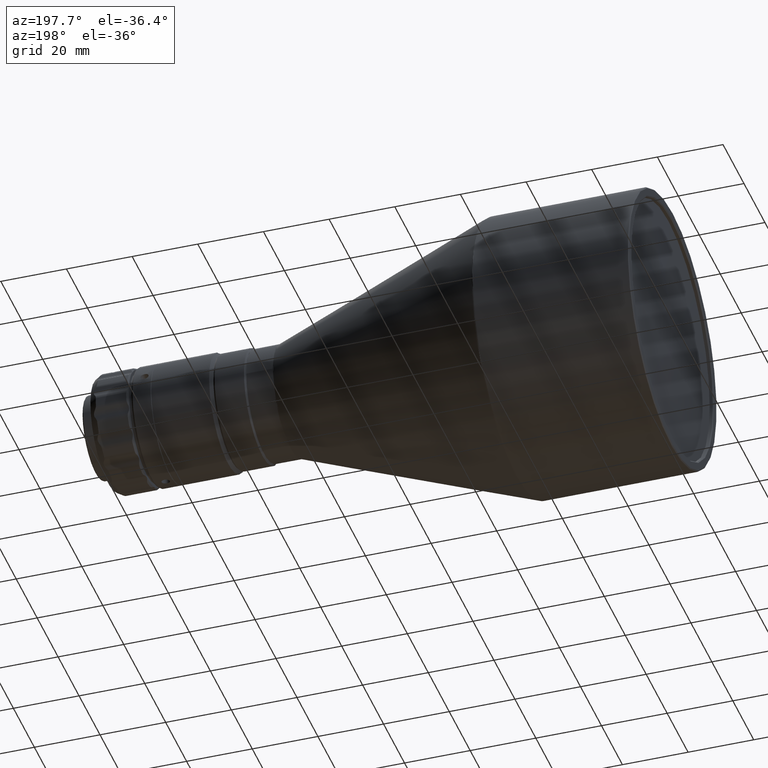
[diagram: clean part render]
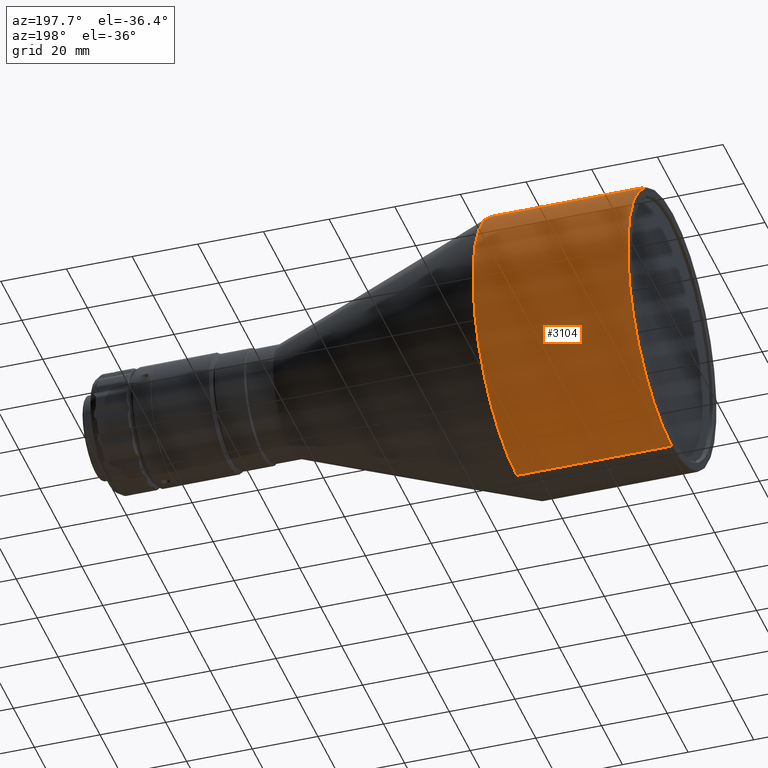
[diagram: same view with one face highlighted and labeled with its STEP entity id]
A machine part, auxiliary view. The second image highlights one B-rep face of the part: STEP entity #3104.
In plain terms, the highlighted cylindrical surface (partial cylindrical patch) has radius 42 mm, axis along (-1, 0, 0).
Its self-contained STEP definition (entity closure, byte-faithful):
#177 = CARTESIAN_POINT ( 'NONE',  ( 47.46041055200000600, 5.143516556418883300E-015, -42.00000000000000000 ) ) ;
#202 = CARTESIAN_POINT ( 'NONE',  ( 47.46041055261320500, -4.307171998821954500E-009, -41.99999999999982900 ) ) ;
#293 = AXIS2_PLACEMENT_3D ( 'NONE', #454, #814, #801 ) ;
#454 = CARTESIAN_POINT ( 'NONE',  ( 47.46041055200000600, 0.0000000000000000000, 0.0000000000000000000 ) ) ;
#505 = CARTESIAN_POINT ( 'NONE',  ( 47.46041055261317600, 0.0000000000000000000, 0.0000000000000000000 ) ) ;
#625 = VERTEX_POINT ( 'NONE', #202 ) ;
#727 = VERTEX_POINT ( 'NONE', #4154 ) ;
#767 = DIRECTION ( 'NONE',  ( 0.0000000000000000000, 0.0000000000000000000, 1.000000000000000000 ) ) ;
#777 = EDGE_LOOP ( 'NONE', ( #1058, #4310, #1042, #2009 ) ) ;
#801 = DIRECTION ( 'NONE',  ( 0.0000000000000000000, 0.0000000000000000000, 1.000000000000000000 ) ) ;
#806 = DIRECTION ( 'NONE',  ( 0.0000000000000000000, 1.000000000000000000, 0.0000000000000000000 ) ) ;
#814 = DIRECTION ( 'NONE',  ( -1.000000000000000000, 0.0000000000000000000, 0.0000000000000000000 ) ) ;
#965 = CARTESIAN_POINT ( 'NONE',  ( 47.46041055245989800, 0.0000000000000000000, 41.99999999999982900 ) ) ;
#1018 = LINE ( 'NONE', #177, #1228 ) ;
#1042 = ORIENTED_EDGE ( 'NONE', *, *, #1258, .F. ) ;
#1058 = ORIENTED_EDGE ( 'NONE', *, *, #3973, .F. ) ;
#1228 = VECTOR ( 'NONE', #3018, 1000.000000000000000 ) ;
#1258 = EDGE_CURVE ( 'NONE', #2924, #727, #2478, .T. ) ;
#1308 = DIRECTION ( 'NONE',  ( -1.000000000000000000, 0.0000000000000000000, 0.0000000000000000000 ) ) ;
#1427 = CARTESIAN_POINT ( 'NONE',  ( 0.3000000000000000400, 0.0000000000000000000, 0.0000000000000000000 ) ) ;
#1620 = FACE_OUTER_BOUND ( 'NONE', #777, .T. ) ;
#2009 = ORIENTED_EDGE ( 'NONE', *, *, #2222, .F. ) ;
#2059 = CIRCLE ( 'NONE', #2787, 41.99999999999977300 ) ;
#2118 = AXIS2_PLACEMENT_3D ( 'NONE', #1427, #3118, #767 ) ;
#2222 = EDGE_CURVE ( 'NONE', #2947, #2924, #4124, .T. ) ;
#2325 = CYLINDRICAL_SURFACE ( 'NONE', #293, 42.00000000000000000 ) ;
#2478 = CIRCLE ( 'NONE', #2118, 41.99999999999999300 ) ;
#2787 = AXIS2_PLACEMENT_3D ( 'NONE', #505, #3562, #806 ) ;
#2924 = VERTEX_POINT ( 'NONE', #4392 ) ;
#2947 = VERTEX_POINT ( 'NONE', #965 ) ;
#3018 = DIRECTION ( 'NONE',  ( -1.000000000000000000, 0.0000000000000000000, 0.0000000000000000000 ) ) ;
#3104 = ADVANCED_FACE ( 'NONE', ( #1620 ), #2325, .T. ) ;
#3118 = DIRECTION ( 'NONE',  ( -1.000000000000000000, 0.0000000000000000000, 0.0000000000000000000 ) ) ;
#3562 = DIRECTION ( 'NONE',  ( 1.000000000000000000, 8.260587980822767000E-017, 0.0000000000000000000 ) ) ;
#3639 = EDGE_CURVE ( 'NONE', #625, #727, #1018, .T. ) ;
#3807 = VECTOR ( 'NONE', #1308, 1000.000000000000000 ) ;
#3973 = EDGE_CURVE ( 'NONE', #625, #2947, #2059, .T. ) ;
#4087 = CARTESIAN_POINT ( 'NONE',  ( 47.46041055200000600, 0.0000000000000000000, 42.00000000000000000 ) ) ;
#4124 = LINE ( 'NONE', #4087, #3807 ) ;
#4154 = CARTESIAN_POINT ( 'NONE',  ( 0.3000000000000000400, 0.0000000000000000000, -42.00000000000000000 ) ) ;
#4310 = ORIENTED_EDGE ( 'NONE', *, *, #3639, .T. ) ;
#4392 = CARTESIAN_POINT ( 'NONE',  ( 0.3000000000000000400, 5.143516556418883300E-015, 42.00000000000000000 ) ) ;